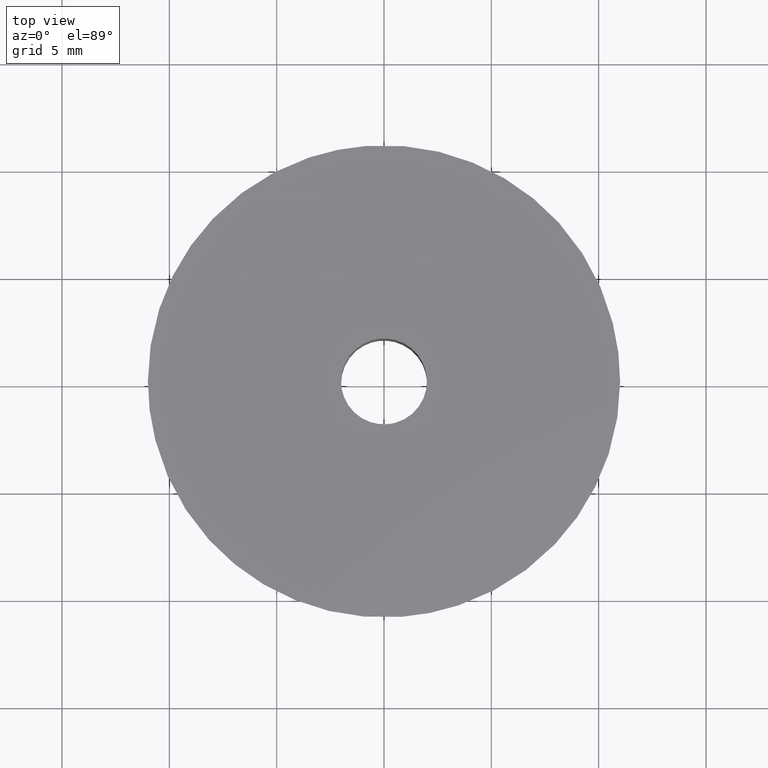
[diagram: clean part render]
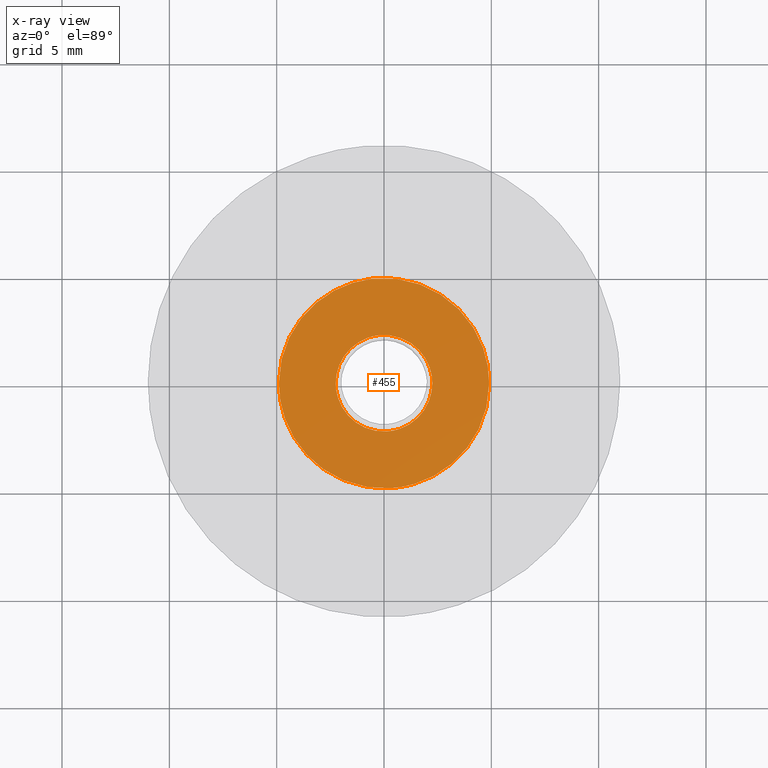
[diagram: x-ray — body ghosted, one internal face saturated and labeled with its STEP entity id]
A machine part, top view, then the same camera in x-ray: the body is ghosted and one INTERNAL B-rep face — a face not visible from any outside direction — is saturated and labeled: STEP entity #455.
In plain terms, the highlighted face is a freeform B-spline surface patch.
Its self-contained STEP definition (entity closure, byte-faithful):
#100=CARTESIAN_POINT('',(0.137357900402845,-2.245803376788625,8.799999999999839));
#101=VERTEX_POINT('',#100);
#107=CARTESIAN_POINT('',(2.250000000000000,0.0,8.799999999999839));
#108=VERTEX_POINT('',#107);
#109=CARTESIAN_POINT('',(2.250000000000000,0.0,8.799999999999839));
#110=CARTESIAN_POINT('',(2.250000000000000,-2.116589890825571,8.799999999999839));
#111=CARTESIAN_POINT('',(0.137357900402844,-2.245803376788624,8.799999999999839));
#119=(BOUNDED_CURVE()B_SPLINE_CURVE(2,(#109,#110,#111),.UNSPECIFIED.,.F.,.U.)B_SPLINE_CURVE_WITH_KNOTS((3,3),(0.500000000000000,0.739333063163075),.UNSPECIFIED.)CURVE()GEOMETRIC_REPRESENTATION_ITEM()RATIONAL_B_SPLINE_CURVE((1.0,0.719603875046735,0.976072257966439))REPRESENTATION_ITEM(''));
#120=EDGE_CURVE('',#108,#101,#119,.T.);
#122=CARTESIAN_POINT('',(-0.265577027999116,2.234271434315704,8.799999999999837));
#123=VERTEX_POINT('',#122);
#124=CARTESIAN_POINT('',(-0.265577027999116,2.234271434315704,8.799999999999837));
#125=CARTESIAN_POINT('',(-0.133254269238433,2.250000000000000,8.799999999999841));
#126=CARTESIAN_POINT('',(0.0,2.250000000000000,8.799999999999839));
#127=CARTESIAN_POINT('',(2.250000000000000,2.250000000000000,8.799999999999839));
#128=CARTESIAN_POINT('',(2.250000000000000,0.0,8.799999999999839));
#136=(BOUNDED_CURVE()B_SPLINE_CURVE(2,(#124,#125,#126,#127,#128),.UNSPECIFIED.,.F.,.U.)B_SPLINE_CURVE_WITH_KNOTS((3,2,3),(0.229562473512405,0.250000000000000,0.500000000000000),.UNSPECIFIED.)CURVE()GEOMETRIC_REPRESENTATION_ITEM()RATIONAL_B_SPLINE_CURVE((0.956026754181537,0.976055948329853,1.0,0.707106781186547,1.0))REPRESENTATION_ITEM(''));
#137=EDGE_CURVE('',#123,#108,#136,.T.);
#181=CARTESIAN_POINT('',(-2.250000000000000,0.0,8.799999999999839));
#182=VERTEX_POINT('',#181);
#183=CARTESIAN_POINT('',(-2.250000000000000,0.0,8.799999999999839));
#184=CARTESIAN_POINT('',(-2.250000000000001,1.998392683352009,8.799999999999839));
#185=CARTESIAN_POINT('',(-0.265577027999116,2.234271434315704,8.799999999999837));
#193=(BOUNDED_CURVE()B_SPLINE_CURVE(2,(#183,#184,#185),.UNSPECIFIED.,.F.,.U.)B_SPLINE_CURVE_WITH_KNOTS((3,3),(0.0,0.229562473512405),.UNSPECIFIED.)CURVE()GEOMETRIC_REPRESENTATION_ITEM()RATIONAL_B_SPLINE_CURVE((1.0,0.731050832856695,0.956026754181537))REPRESENTATION_ITEM(''));
#194=EDGE_CURVE('',#182,#123,#193,.T.);
#196=CARTESIAN_POINT('',(0.137357900402844,-2.245803376788624,8.799999999999839));
#197=CARTESIAN_POINT('',(0.068743058805028,-2.250000000000000,8.799999999999839));
#198=CARTESIAN_POINT('',(0.0,-2.250000000000000,8.799999999999839));
#199=CARTESIAN_POINT('',(-2.250000000000000,-2.250000000000000,8.799999999999839));
#200=CARTESIAN_POINT('',(-2.250000000000000,0.0,8.799999999999839));
#208=(BOUNDED_CURVE()B_SPLINE_CURVE(2,(#196,#197,#198,#199,#200),.UNSPECIFIED.,.F.,.U.)B_SPLINE_CURVE_WITH_KNOTS((3,2,3),(0.739333063163075,0.750000000000000,1.0),.UNSPECIFIED.)CURVE()GEOMETRIC_REPRESENTATION_ITEM()RATIONAL_B_SPLINE_CURVE((0.976072257966439,0.987502906139813,1.0,0.707106781186547,1.0))REPRESENTATION_ITEM(''));
#209=EDGE_CURVE('',#101,#182,#208,.T.);
#275=CARTESIAN_POINT('',(-0.578362033899507,4.865747358598727,8.799999999999839));
#276=VERTEX_POINT('',#275);
#282=CARTESIAN_POINT('',(4.900000000000000,0.0,8.799999999999839));
#283=VERTEX_POINT('',#282);
#284=CARTESIAN_POINT('',(-0.578362033899507,4.865747358598727,8.799999999999839));
#285=CARTESIAN_POINT('',(-0.290195298121578,4.900000000000000,8.799999999999839));
#286=CARTESIAN_POINT('',(0.0,4.900000000000000,8.799999999999839));
#287=CARTESIAN_POINT('',(4.899999999999999,4.899999999999999,8.799999999999839));
#288=CARTESIAN_POINT('',(4.900000000000000,0.0,8.799999999999839));
#296=(BOUNDED_CURVE()B_SPLINE_CURVE(2,(#284,#285,#286,#287,#288),.UNSPECIFIED.,.F.,.U.)B_SPLINE_CURVE_WITH_KNOTS((3,2,3),(0.229562672048151,0.250000000000000,0.500000000000000),.UNSPECIFIED.)CURVE()GEOMETRIC_REPRESENTATION_ITEM()RATIONAL_B_SPLINE_CURVE((0.956027143320093,0.976056180928947,1.0,0.707106781186547,1.0))REPRESENTATION_ITEM(''));
#297=EDGE_CURVE('',#276,#283,#296,.T.);
#299=CARTESIAN_POINT('',(0.299129965492824,-4.890860994107474,8.799999999999839));
#300=VERTEX_POINT('',#299);
#301=CARTESIAN_POINT('',(4.900000000000000,0.0,8.799999999999839));
#302=CARTESIAN_POINT('',(4.899999999999999,-4.609467166663581,8.799999999999839));
#303=CARTESIAN_POINT('',(0.299129965492824,-4.890860994107474,8.799999999999839));
#311=(BOUNDED_CURVE()B_SPLINE_CURVE(2,(#301,#302,#303),.UNSPECIFIED.,.F.,.U.)B_SPLINE_CURVE_WITH_KNOTS((3,3),(0.500000000000000,0.739333240181448),.UNSPECIFIED.)CURVE()GEOMETRIC_REPRESENTATION_ITEM()RATIONAL_B_SPLINE_CURVE((1.0,0.719603667656810,0.976072637351139))REPRESENTATION_ITEM(''));
#312=EDGE_CURVE('',#283,#300,#311,.T.);
#386=CARTESIAN_POINT('',(-4.900000000000000,0.0,8.799999999999839));
#387=VERTEX_POINT('',#386);
#388=CARTESIAN_POINT('',(0.299129965492824,-4.890860994107474,8.799999999999839));
#389=CARTESIAN_POINT('',(0.149704590004692,-4.899999999999999,8.799999999999839));
#390=CARTESIAN_POINT('',(0.0,-4.900000000000000,8.799999999999839));
#391=CARTESIAN_POINT('',(-4.899999999999999,-4.899999999999999,8.799999999999839));
#392=CARTESIAN_POINT('',(-4.900000000000000,0.0,8.799999999999839));
#400=(BOUNDED_CURVE()B_SPLINE_CURVE(2,(#388,#389,#390,#391,#392),.UNSPECIFIED.,.F.,.U.)B_SPLINE_CURVE_WITH_KNOTS((3,2,3),(0.739333240181448,0.750000000000000,1.0),.UNSPECIFIED.)CURVE()GEOMETRIC_REPRESENTATION_ITEM()RATIONAL_B_SPLINE_CURVE((0.976072637351139,0.987503113529738,1.0,0.707106781186547,1.0))REPRESENTATION_ITEM(''));
#401=EDGE_CURVE('',#300,#387,#400,.T.);
#403=CARTESIAN_POINT('',(-4.900000000000000,0.0,8.799999999999839));
#404=CARTESIAN_POINT('',(-4.900000000000000,4.352060325625756,8.799999999999837));
#405=CARTESIAN_POINT('',(-0.578362033899507,4.865747358598727,8.799999999999839));
#413=(BOUNDED_CURVE()B_SPLINE_CURVE(2,(#403,#404,#405),.UNSPECIFIED.,.F.,.U.)B_SPLINE_CURVE_WITH_KNOTS((3,3),(0.0,0.229562672048151),.UNSPECIFIED.)CURVE()GEOMETRIC_REPRESENTATION_ITEM()RATIONAL_B_SPLINE_CURVE((1.0,0.731050600257600,0.956027143320093))REPRESENTATION_ITEM(''));
#414=EDGE_CURVE('',#387,#276,#413,.T.);
#438=CARTESIAN_POINT('',(5.389510073001086,-5.389390995347219,8.799999999999839));
#439=CARTESIAN_POINT('',(-5.389510248238743,-5.389390995347219,8.799999999999839));
#440=CARTESIAN_POINT('',(5.389510073001086,5.389420873367506,8.799999999999839));
#441=CARTESIAN_POINT('',(-5.389510248238743,5.389420873367506,8.799999999999839));
#442=B_SPLINE_SURFACE_WITH_KNOTS('',1,1,((#438,#440),(#439,#441)),.UNSPECIFIED.,.F.,.F.,.U.,(2,2),(2,2),(0.0,10.779020321239830),(0.0,10.778811868714730),.UNSPECIFIED.);
#443=ORIENTED_EDGE('',*,*,#401,.F.);
#444=ORIENTED_EDGE('',*,*,#312,.F.);
#445=ORIENTED_EDGE('',*,*,#297,.F.);
#446=ORIENTED_EDGE('',*,*,#414,.F.);
#447=EDGE_LOOP('',(#443,#444,#445,#446));
#448=FACE_OUTER_BOUND('',#447,.T.);
#449=ORIENTED_EDGE('',*,*,#120,.T.);
#450=ORIENTED_EDGE('',*,*,#209,.T.);
#451=ORIENTED_EDGE('',*,*,#194,.T.);
#452=ORIENTED_EDGE('',*,*,#137,.T.);
#453=EDGE_LOOP('',(#449,#450,#451,#452));
#454=FACE_BOUND('',#453,.T.);
#455=ADVANCED_FACE('',(#448,#454),#442,.F.);